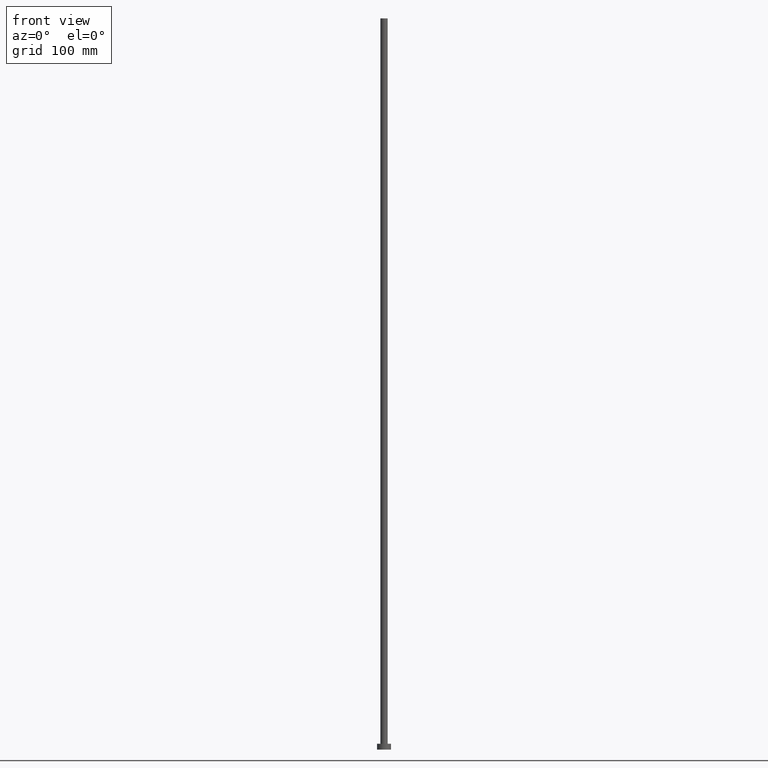
[diagram: clean part render]
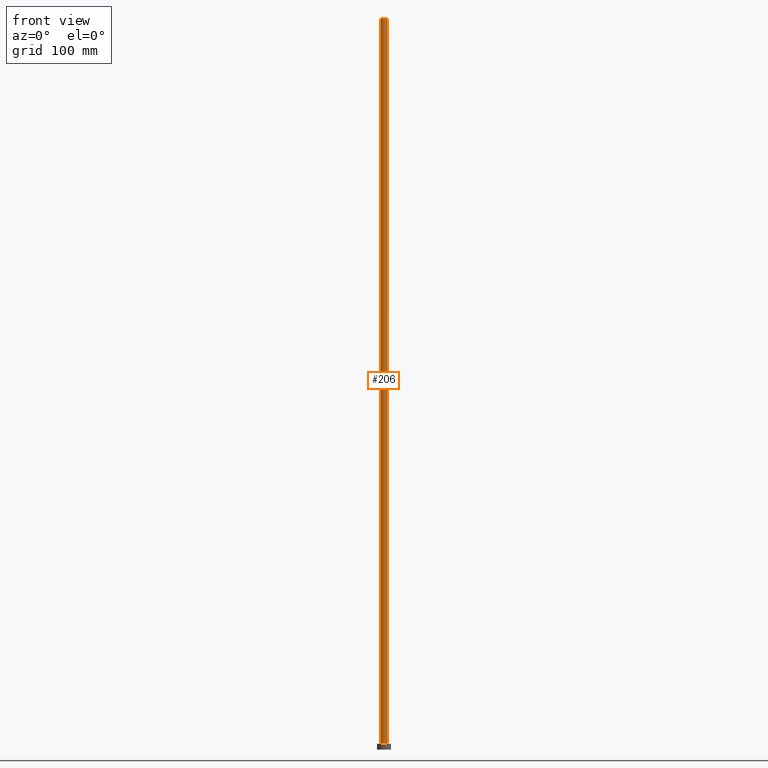
[diagram: same view with one face highlighted and labeled with its STEP entity id]
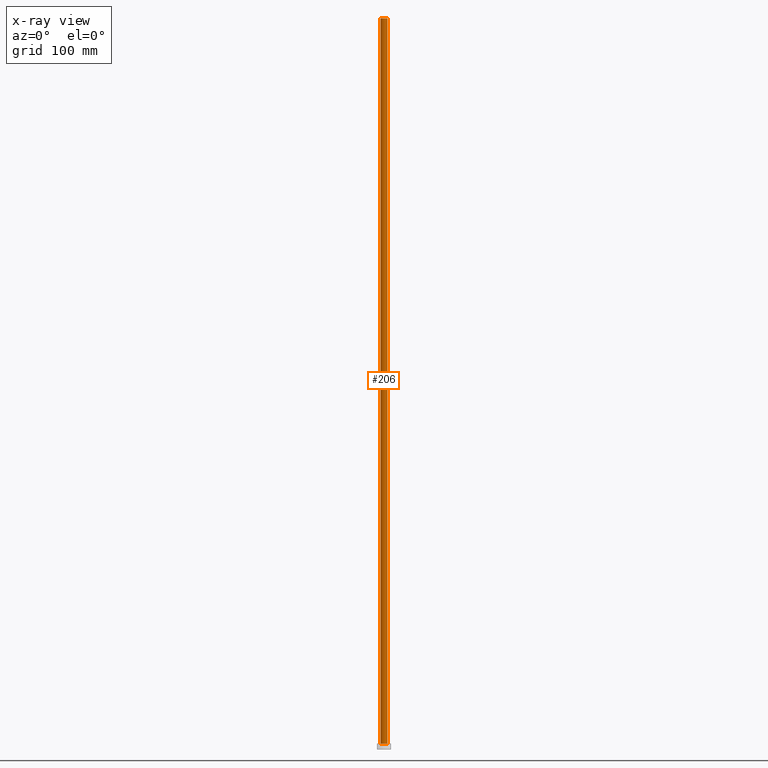
[diagram: x-ray of the same camera — body ghosted, the highlighted face saturated]
A machine part, front view. The second image highlights one B-rep face of the part: STEP entity #206.
The next image is the same camera in x-ray: the body ghosted, the highlighted face saturated — about 0% of this face is hidden behind the body in this view.
In plain terms, the highlighted cylindrical surface (edge-blend (fillet) strip) has radius 3.1 mm, axis along (-0, -0, -1).
Its self-contained STEP definition (entity closure, byte-faithful):
#1 = VECTOR ( 'NONE', #219, 1000.000000000000000 ) ;
#6 = ORIENTED_EDGE ( 'NONE', *, *, #61, .F. ) ;
#16 = AXIS2_PLACEMENT_3D ( 'NONE', #94, #90, #208 ) ;
#27 = VERTEX_POINT ( 'NONE', #54 ) ;
#28 = ORIENTED_EDGE ( 'NONE', *, *, #86, .T. ) ;
#39 = DIRECTION ( 'NONE',  ( 1.000000000000000000, 0.000000000000000000, 0.000000000000000000 ) ) ;
#40 = LINE ( 'NONE', #42, #62 ) ;
#42 = CARTESIAN_POINT ( 'NONE',  ( -3.100000000000000089, 0.000000000000000000, 630.0000000000000000 ) ) ;
#47 = VERTEX_POINT ( 'NONE', #255 ) ;
#52 = CARTESIAN_POINT ( 'NONE',  ( -3.100000000000000089, 0.000000000000000000, 630.0000000000000000 ) ) ;
#54 = CARTESIAN_POINT ( 'NONE',  ( 3.100000000000000089, 3.796405077356794918E-16, 630.0000000000000000 ) ) ;
#60 = ORIENTED_EDGE ( 'NONE', *, *, #111, .T. ) ;
#61 = EDGE_CURVE ( 'NONE', #27, #47, #119, .T. ) ;
#62 = VECTOR ( 'NONE', #134, 1000.000000000000000 ) ;
#71 = DIRECTION ( 'NONE',  ( 0.000000000000000000, 0.000000000000000000, 1.000000000000000000 ) ) ;
#86 = EDGE_CURVE ( 'NONE', #177, #107, #40, .T. ) ;
#90 = DIRECTION ( 'NONE',  ( -0.000000000000000000, -0.000000000000000000, -1.000000000000000000 ) ) ;
#92 = FACE_OUTER_BOUND ( 'NONE', #178, .T. ) ;
#94 = CARTESIAN_POINT ( 'NONE',  ( 0.000000000000000000, 0.000000000000000000, 630.0000000000000000 ) ) ;
#104 = EDGE_CURVE ( 'NONE', #177, #27, #222, .T. ) ;
#105 = CIRCLE ( 'NONE', #205, 3.100000000000000089 ) ;
#107 = VERTEX_POINT ( 'NONE', #171 ) ;
#111 = EDGE_CURVE ( 'NONE', #107, #47, #105, .T. ) ;
#116 = CARTESIAN_POINT ( 'NONE',  ( 0.000000000000000000, 0.000000000000000000, 5.000000000000000000 ) ) ;
#119 = LINE ( 'NONE', #152, #1 ) ;
#134 = DIRECTION ( 'NONE',  ( -0.000000000000000000, -0.000000000000000000, -1.000000000000000000 ) ) ;
#143 = ORIENTED_EDGE ( 'NONE', *, *, #104, .F. ) ;
#152 = CARTESIAN_POINT ( 'NONE',  ( 3.100000000000000089, 3.796405077356794918E-16, 630.0000000000000000 ) ) ;
#171 = CARTESIAN_POINT ( 'NONE',  ( -3.100000000000000089, 0.000000000000000000, 5.000000000000000000 ) ) ;
#177 = VERTEX_POINT ( 'NONE', #52 ) ;
#178 = EDGE_LOOP ( 'NONE', ( #6, #143, #28, #60 ) ) ;
#193 = AXIS2_PLACEMENT_3D ( 'NONE', #197, #248, #39 ) ;
#197 = CARTESIAN_POINT ( 'NONE',  ( 0.000000000000000000, 0.000000000000000000, 630.0000000000000000 ) ) ;
#205 = AXIS2_PLACEMENT_3D ( 'NONE', #116, #71, #232 ) ;
#206 = ADVANCED_FACE ( 'NONE', ( #92 ), #233, .T. ) ;
#208 = DIRECTION ( 'NONE',  ( -1.000000000000000000, 0.000000000000000000, 0.000000000000000000 ) ) ;
#219 = DIRECTION ( 'NONE',  ( -0.000000000000000000, -0.000000000000000000, -1.000000000000000000 ) ) ;
#222 = CIRCLE ( 'NONE', #193, 3.100000000000000089 ) ;
#232 = DIRECTION ( 'NONE',  ( 1.000000000000000000, 0.000000000000000000, 0.000000000000000000 ) ) ;
#233 = CYLINDRICAL_SURFACE ( 'NONE', #16, 3.100000000000000089 ) ;
#248 = DIRECTION ( 'NONE',  ( 0.000000000000000000, 0.000000000000000000, 1.000000000000000000 ) ) ;
#255 = CARTESIAN_POINT ( 'NONE',  ( 3.100000000000000089, 3.796405077356794918E-16, 5.000000000000000000 ) ) ;